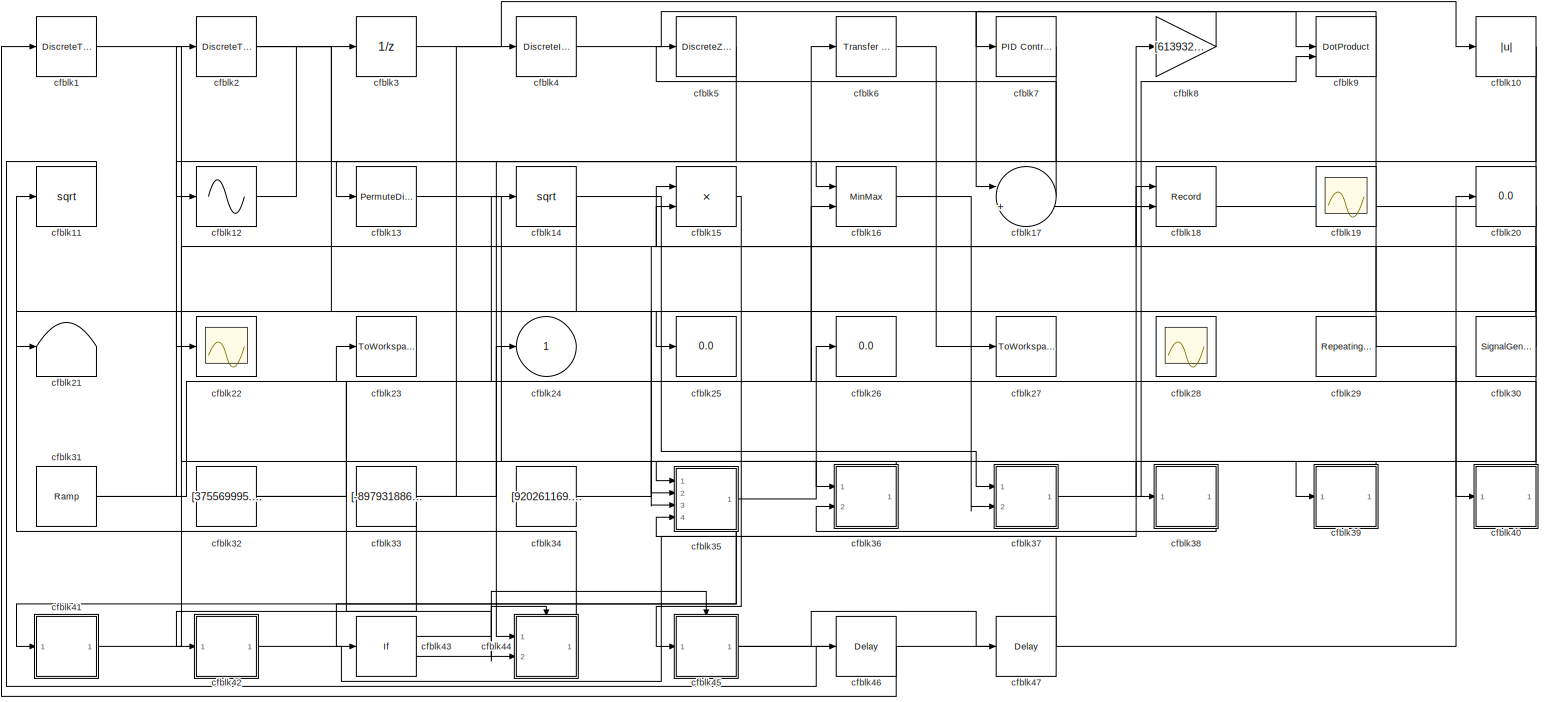
[diagram: root canvas - part 1/1, most of the canvas]
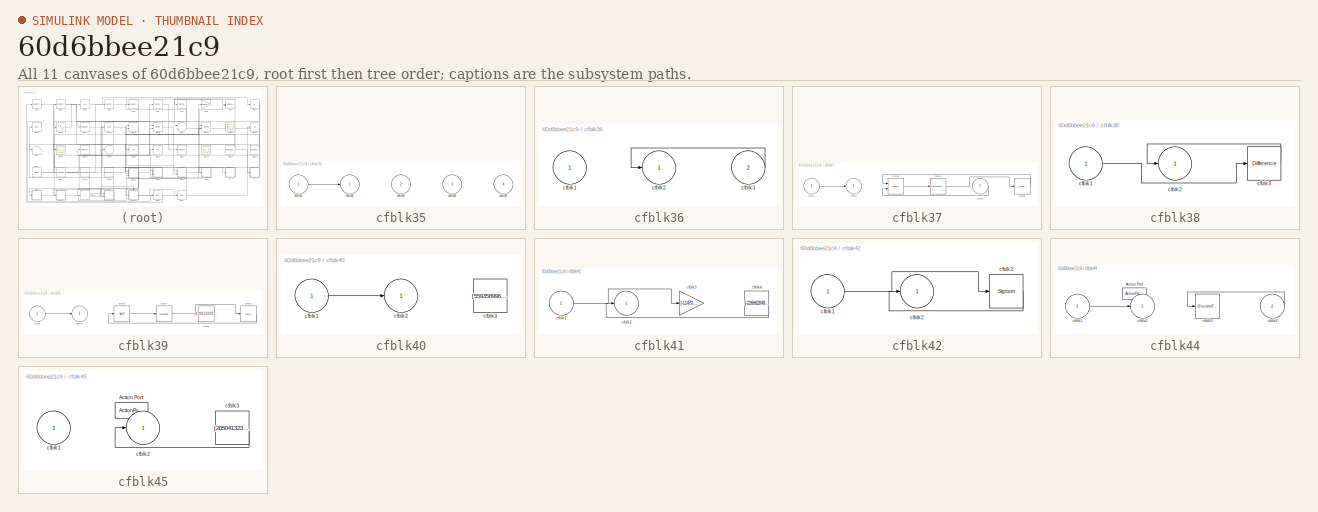
[diagram: thumbnail index - all 11 canvases of the model, root first then tree order]
MODEL slx_60d6bbee21c9
KIND model
CONFIG AbsTol = auto
CONFIG EnableMultiTasking = off
CONFIG FixedStep = auto
CONFIG MaxStep = auto
CONFIG MinStep = auto
CONFIG RelTol = 1e-3
CONFIG SampleTimeConstraint = Unconstrained
CONFIG SolverName = VariableStepAuto
CONFIG StartTime = 0.0
CONFIG StopTime = 10.0
BLOCK [DiscreteTransferFcn] cfblk1
  InputPortMap = u0
  Ports = [1, 1]
  SampleTime = 1
BLOCK [Abs] cfblk10
  SaturateOnIntegerOverflow = off
BLOCK [Sqrt] cfblk11
BLOCK [Sin] cfblk12
  Ports = [1, 1]
  SampleTime = 0
  TimeSource = Use external signal
BLOCK [PermuteDimensions] cfblk13
BLOCK [Sqrt] cfblk14
BLOCK [Product] cfblk15
  Ports = [2, 1]
BLOCK [MinMax] cfblk16
  Function = max
  Inputs = 2
  Ports = [2, 1]
BLOCK [Sum] cfblk17
  Inputs = |++
  Ports = [2, 1]
BLOCK [Record] cfblk18
  CompatibilityTag = XY
  FileSettingsInternal = {"entries":[{"content":{"excelSettings":{"content":{},"type":"Streamout.ExcelSettings"}},"type":"Streamout.FileSettingStorage","uuid":"7568b358-9aad-4af9-8d11-2ce29c1365cd"}],"packageUris":["http://schema.mathworks.com/mf0/streamout_blocks/R2020a"],"version":"1.0"}
  Layout = [1 1]
  Ports = [2]
  SignalsInternal = {"entries":[{"content":{"signals":[{"content":{"blockPath":["sampleModel123/cfblk18"],"channel":[],"dimensions":[1],"domain":"sampleModel123/cfblk18","lineColor":"#a2142f","plots":[1],"port":1,"sid":[""],"signalID":4284,"signalName":"cfblk41"},"type":"RecordBlkView.Signal","uuid":"4af1f1ed-1686-44ad-a446-bba7f3dfda95"},{"content":{"blockPath":["sampleModel123/cfblk18"],"channel":[],"dimensions":[1...<+383ch>
  VisualizationBindings = {"xyplotplugin":{"info":[{"series":[{"bindingParametersList":[{"parameter":"X-Axis","signalID":4284,"signalName":"cfblk41"},{"parameter":"Y-Axis","signalID":4288,"signalName":"cfblk34"}],"seriesID":28419}],"subplotID":1}]}}
BLOCK [Scope] cfblk19
  Floating = on
  NumInputPorts = 1
  Ports = []
BLOCK [DiscreteTransferFcn] cfblk2
  InputPortMap = u0
  Ports = [1, 1]
  SampleTime = 1
BLOCK [Display] cfblk20
  Decimation = 1
  Ports = [1]
BLOCK [Terminator] cfblk21
BLOCK [Scope] cfblk22
  Floating = off
  NumInputPorts = 1
  Ports = [1]
BLOCK [ToWorkspace] cfblk23
  FixptAsFi = on
  MaxDataPoints = inf
  Ports = [1]
  SampleTime = -1
  SaveFormat = Timeseries
  VariableName = btsuvxb
BLOCK [Outport] cfblk24
BLOCK [Display] cfblk25
  Decimation = 1
  Ports = [1]
BLOCK [Display] cfblk26
  Decimation = 1
  Ports = [1]
BLOCK [ToWorkspace] cfblk27
  FixptAsFi = on
  MaxDataPoints = inf
  Ports = [1]
  SampleTime = -1
  SaveFormat = Timeseries
  VariableName = actveva
BLOCK [Scope] cfblk28
  Floating = on
  NumInputPorts = 1
  Ports = []
BLOCK [Reference] cfblk29  REF=simulink/Sources/Repeating
Sequence
Stair
  Ports = [0, 1]
  SourceBlock = simulink/Sources/Repeating\nSequence\nStair
  SourceProductBaseCode = SL
  SourceType = Repeating Sequence Stair
BLOCK [UnitDelay] cfblk3
  HasFrameUpgradeWarning = on
BLOCK [SignalGenerator] cfblk30
  Amplitude = [-148070533.456702]
  Ports = [0, 1]
  Units = rad/sec
BLOCK [Reference] cfblk31  REF=simulink/Sources/Ramp
  Ports = [0, 1]
  SourceBlock = simulink/Sources/Ramp
  SourceProductBaseCode = SL
  SourceType = Ramp
BLOCK [Constant] cfblk32
  SampleTime = 1
  Value = [375569995.240271]
BLOCK [Constant] cfblk33
  SampleTime = 1
  Value = [-897931886.977082]
BLOCK [Constant] cfblk34
  SampleTime = 1
  Value = [920261169.450756]
BLOCK [SubSystem] cfblk35
  Ports = [4, 1]
  RequestExecContextInheritance = off
BLOCK [Inport] cfblk35/cfblk1
BLOCK [Outport] cfblk35/cfblk2
BLOCK [Inport] cfblk35/cfblk3
  Port = 2
BLOCK [Inport] cfblk35/cfblk4
  Port = 3
BLOCK [Inport] cfblk35/cfblk5
  Port = 4
BLOCK [SubSystem] cfblk36
  Ports = [2, 1]
  RequestExecContextInheritance = off
BLOCK [Inport] cfblk36/cfblk1
BLOCK [Outport] cfblk36/cfblk2
BLOCK [Inport] cfblk36/cfblk3
  Port = 2
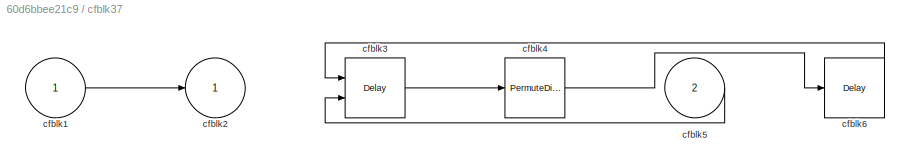
BLOCK [SubSystem] cfblk37
  Ports = [2, 1]
  RequestExecContextInheritance = off
BLOCK [Inport] cfblk37/cfblk1
BLOCK [Outport] cfblk37/cfblk2
BLOCK [Delay] cfblk37/cfblk3
  DelayLengthSource = Input port
  InputPortMap = u0,p1
  Ports = [2, 1]
  SampleTime = 1
BLOCK [PermuteDimensions] cfblk37/cfblk4
BLOCK [Inport] cfblk37/cfblk5
  Port = 2
BLOCK [Delay] cfblk37/cfblk6
  InputPortMap = u0
  Ports = [1, 1]
  SampleTime = 1
BLOCK [SubSystem] cfblk38
  Ports = [1, 1]
  RequestExecContextInheritance = off
BLOCK [Inport] cfblk38/cfblk1
BLOCK [Outport] cfblk38/cfblk2
BLOCK [Reference] cfblk38/cfblk3  REF=simulink/Discrete/Difference
  Ports = [1, 1]
  SourceBlock = simulink/Discrete/Difference
  SourceProductBaseCode = SL
  SourceType = Difference
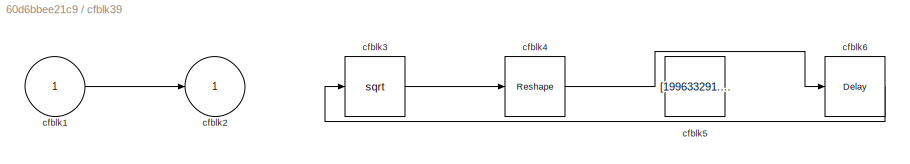
BLOCK [SubSystem] cfblk39
  Ports = [1, 1]
  RequestExecContextInheritance = off
BLOCK [Inport] cfblk39/cfblk1
BLOCK [Outport] cfblk39/cfblk2
BLOCK [Sqrt] cfblk39/cfblk3
BLOCK [Reshape] cfblk39/cfblk4
  Ports = [1, 1]
BLOCK [Constant] cfblk39/cfblk5
  SampleTime = 1
  Value = [199633291.077650]
BLOCK [Delay] cfblk39/cfblk6
  InputPortMap = u0
  Ports = [1, 1]
  SampleTime = 1
BLOCK [DiscreteIntegrator] cfblk4
  ICPrevOutput = DiscIntNeverNeededParam
  ICPrevScaledInput = DiscIntNeverNeededParam
  InitialConditionSetting = Auto
  Ports = [1, 1]
BLOCK [SubSystem] cfblk40
  Ports = [1, 1]
  RequestExecContextInheritance = off
BLOCK [Inport] cfblk40/cfblk1
BLOCK [Outport] cfblk40/cfblk2
BLOCK [Constant] cfblk40/cfblk3
  SampleTime = 1
  Value = [559358996.821805]
BLOCK [SubSystem] cfblk41
  Ports = [1, 1]
  RequestExecContextInheritance = off
BLOCK [Inport] cfblk41/cfblk1
BLOCK [Outport] cfblk41/cfblk2
BLOCK [Gain] cfblk41/cfblk3
  Gain = [-114732524.827492]
BLOCK [Constant] cfblk41/cfblk4
  SampleTime = 1
  Value = [-226662849.043329]
BLOCK [SubSystem] cfblk42
  Ports = [1, 1]
  RequestExecContextInheritance = off
BLOCK [Inport] cfblk42/cfblk1
BLOCK [Outport] cfblk42/cfblk2
BLOCK [Signum] cfblk42/cfblk3
BLOCK [If] cfblk43
  IfExpression = u1 >= 0
  Ports = [1, 2]
  SampleTime = 1
BLOCK [SubSystem] cfblk44
  Ports = [2, 1, 0, 0, 0, 0, 0, 1]
  RequestExecContextInheritance = off
  TreatAsAtomicUnit = on
BLOCK [ActionPort] cfblk44/Action Port
  ActionPortLabel = if(u1 >= 0)
BLOCK [Inport] cfblk44/cfblk1
BLOCK [Outport] cfblk44/cfblk2
BLOCK [DiscreteFir] cfblk44/cfblk3
  InputPortMap = u0
  OutputPortMap = o0
  Ports = [1, 1]
BLOCK [Inport] cfblk44/cfblk4
  Port = 2
BLOCK [SubSystem] cfblk45
  Ports = [1, 1, 0, 0, 0, 0, 0, 1]
  RequestExecContextInheritance = off
  TreatAsAtomicUnit = on
BLOCK [ActionPort] cfblk45/Action Port
  ActionPortLabel = else
BLOCK [Inport] cfblk45/cfblk1
BLOCK [Outport] cfblk45/cfblk2
BLOCK [Constant] cfblk45/cfblk3
  SampleTime = 1
  Value = [205041323.931988]
BLOCK [Delay] cfblk46
  InputPortMap = u0
  Ports = [1, 1]
  SampleTime = 1
BLOCK [Delay] cfblk47
  InputPortMap = u0
  Ports = [1, 1]
  SampleTime = 1
BLOCK [DiscreteZeroPole] cfblk5
  Gain = 1
  Poles = [0 0.5]
BLOCK [Reference] cfblk6  REF=simulink/Discrete/Transfer Fcn
Real Zero
  Ports = [1, 1]
  SourceBlock = simulink/Discrete/Transfer Fcn\nReal Zero
  SourceProductBaseCode = SL
  SourceType = Transfer Fcn Real Zero
BLOCK [Reference] cfblk7  REF=slpidlib/PID Controller
  Ports = [1, 1]
  SourceBlock = slpidlib/PID Controller
  SourceProductBaseCode = SL
  SourceType = PID 1dof
BLOCK [Gain] cfblk8
  Gain = [61393215.626766]
BLOCK [DotProduct] cfblk9
  OutDataTypeStr = Inherit: Inherit via internal rule
NET cfblk10:1 -> cfblk13:1, cfblk35:2
LINE cfblk11:1 -> cfblk46:1
LINE cfblk12:1 -> cfblk3:1
LINE cfblk13:1 -> cfblk39:1
NET cfblk14:1 -> cfblk21:1, cfblk37:1
LINE cfblk15:1 -> cfblk45:1
LINE cfblk16:1 -> cfblk37:2
LINE cfblk17:1 -> cfblk5:1
LINE cfblk1:1 -> cfblk36:1
NET cfblk29:1 -> cfblk15:1, cfblk40:1
NET cfblk2:1 -> cfblk16:1, cfblk25:1
NET cfblk30:1 -> cfblk15:2, cfblk17:2, cfblk35:3
NET cfblk31:1 -> cfblk2:1, cfblk6:1
NET cfblk32:1 -> cfblk14:1, cfblk16:2, cfblk44:2
NET cfblk33:1 -> cfblk24:1, cfblk42:1, cfblk4:1
LINE cfblk34:1 -> cfblk18:2
LINE cfblk35/cfblk1:1 -> cfblk35/cfblk2:1
NET cfblk35:1 -> cfblk26:1, cfblk41:1, cfblk43:1
LINE cfblk36/cfblk3:1 -> cfblk36/cfblk2:1
LINE cfblk36:1 -> cfblk35:1
LINE cfblk37/cfblk1:1 -> cfblk37/cfblk2:1
LINE cfblk37/cfblk3:1 -> cfblk37/cfblk4:1
LINE cfblk37/cfblk4:1 -> cfblk37/cfblk6:1
LINE cfblk37/cfblk5:1 -> cfblk37/cfblk3:2
LINE cfblk37/cfblk6:1 -> cfblk37/cfblk3:1
LINE cfblk37:1 -> cfblk9:2
LINE cfblk38/cfblk1:1 -> cfblk38/cfblk3:1
LINE cfblk38/cfblk3:1 -> cfblk38/cfblk2:1
LINE cfblk38:1 -> cfblk36:2
LINE cfblk39/cfblk1:1 -> cfblk39/cfblk2:1
LINE cfblk39/cfblk3:1 -> cfblk39/cfblk4:1
LINE cfblk39/cfblk4:1 -> cfblk39/cfblk6:1
LINE cfblk39/cfblk6:1 -> cfblk39/cfblk3:1
LINE cfblk39:1 -> cfblk38:1
LINE cfblk3:1 -> cfblk10:1
LINE cfblk40/cfblk1:1 -> cfblk40/cfblk2:1
LINE cfblk40:1 -> cfblk23:1
LINE cfblk41/cfblk1:1 -> cfblk41/cfblk3:1
LINE cfblk41/cfblk4:1 -> cfblk41/cfblk2:1
LINE cfblk41:1 -> cfblk18:1
LINE cfblk42/cfblk1:1 -> cfblk42/cfblk3:1
LINE cfblk42/cfblk3:1 -> cfblk42/cfblk2:1
LINE cfblk42:1 -> cfblk8:1
LINE cfblk43:1 -> cfblk44:ifaction
LINE cfblk43:2 -> cfblk45:ifaction
LINE cfblk44/cfblk1:1 -> cfblk44/cfblk2:1
LINE cfblk44/cfblk4:1 -> cfblk44/cfblk3:1
LINE cfblk44:1 -> cfblk11:1
LINE cfblk45/cfblk3:1 -> cfblk45/cfblk2:1
NET cfblk45:1 -> cfblk20:1, cfblk47:1
LINE cfblk46:1 -> cfblk1:1
LINE cfblk47:1 -> cfblk35:4
LINE cfblk4:1 -> cfblk9:1
LINE cfblk5:1 -> cfblk12:1
LINE cfblk6:1 -> cfblk27:1
LINE cfblk7:1 -> cfblk44:1
LINE cfblk8:1 -> cfblk7:1
NET cfblk9:1 -> cfblk17:1, cfblk22:1
note: NET lines group one-source signal fan-out (src -> all destinations, sorted); 1:1 wires keep LINE
